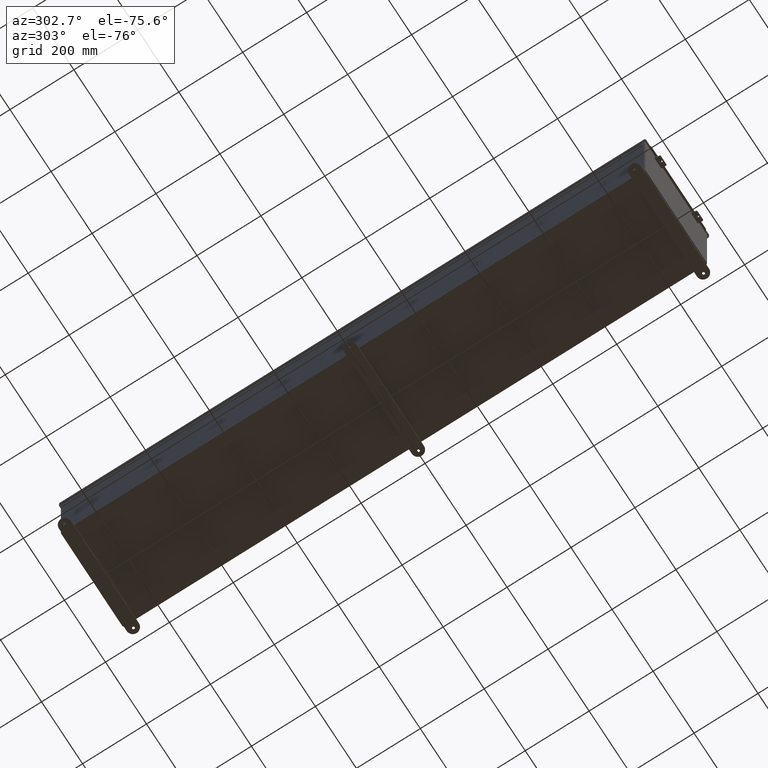
[diagram: clean part render]
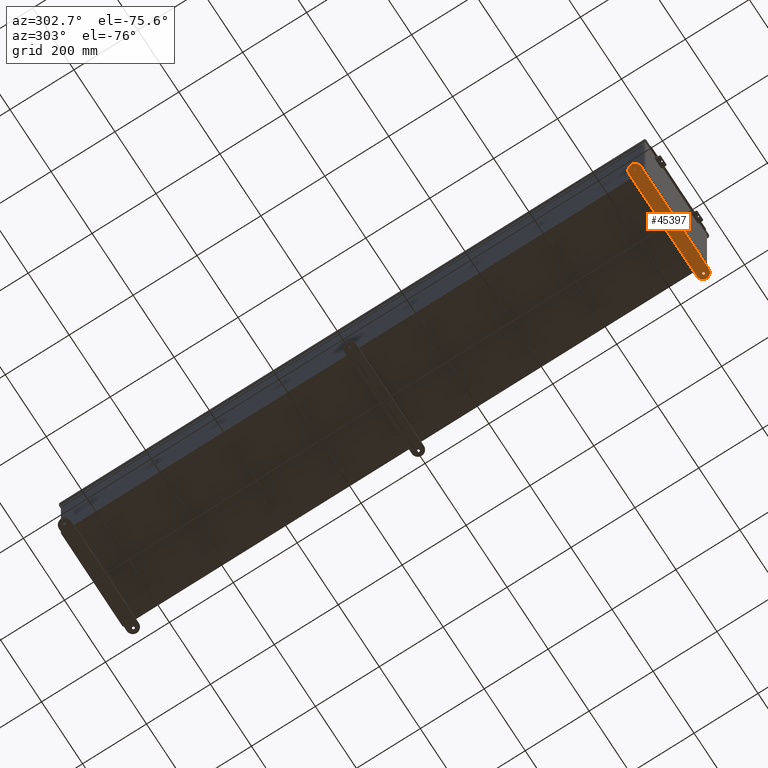
[diagram: same view with one face highlighted and labeled with its STEP entity id]
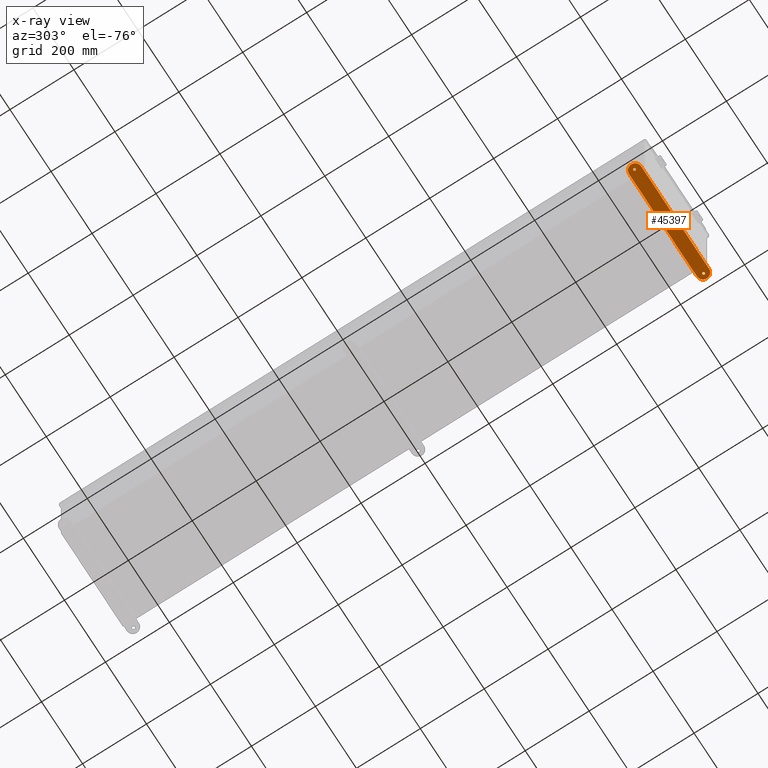
[diagram: x-ray of the same camera — body ghosted, the highlighted face saturated]
A machine part, auxiliary view. The second image highlights one B-rep face of the part: STEP entity #45397.
The next image is the same camera in x-ray: the body ghosted, the highlighted face saturated — about 0% of this face is hidden behind the body in this view.
In plain terms, the highlighted planar face has unit normal (0, 0, -1).
Its self-contained STEP definition (entity closure, byte-faithful):
#140 = CIRCLE ( 'NONE', #41964, 0.7499999999999993300 ) ;
#528 = ORIENTED_EDGE ( 'NONE', *, *, #3545, .F. ) ;
#782 = AXIS2_PLACEMENT_3D ( 'NONE', #26553, #3190, #30512 ) ;
#814 = DIRECTION ( 'NONE',  ( -0.0000000000000000000, -0.0000000000000000000, -1.000000000000000000 ) ) ;
#951 = DIRECTION ( 'NONE',  ( -1.000000000000000000, 0.0000000000000000000, 0.0000000000000000000 ) ) ;
#1377 = DIRECTION ( 'NONE',  ( 1.000000000000000000, -1.260852920152736700E-016, 0.0000000000000000000 ) ) ;
#2105 = CARTESIAN_POINT ( 'NONE',  ( 6.500000000000000000, -0.3379059350503891300, -0.1345000000000000100 ) ) ;
#2721 = CARTESIAN_POINT ( 'NONE',  ( -6.468500000000001500, 0.4120940649496083700, -0.1345000000000000100 ) ) ;
#2829 = VERTEX_POINT ( 'NONE', #2105 ) ;
#2943 = ORIENTED_EDGE ( 'NONE', *, *, #50158, .F. ) ;
#3042 = AXIS2_PLACEMENT_3D ( 'NONE', #11460, #38716, #15373 ) ;
#3190 = DIRECTION ( 'NONE',  ( 0.0000000000000000000, 0.0000000000000000000, 1.000000000000000000 ) ) ;
#3316 = EDGE_CURVE ( 'NONE', #39813, #2829, #28028, .T. ) ;
#3407 = CIRCLE ( 'NONE', #3042, 0.1564999999999992800 ) ;
#3414 = AXIS2_PLACEMENT_3D ( 'NONE', #42096, #18748, #46007 ) ;
#3417 = CARTESIAN_POINT ( 'NONE',  ( 6.500000000000000000, 0.4120940649496125900, -0.1345000000000000100 ) ) ;
#3545 = EDGE_CURVE ( 'NONE', #15914, #4592, #50649, .T. ) ;
#4592 = VERTEX_POINT ( 'NONE', #5259 ) ;
#4864 = EDGE_CURVE ( 'NONE', #11238, #16376, #50508, .T. ) ;
#4876 = EDGE_CURVE ( 'NONE', #2829, #15914, #20573, .T. ) ;
#5259 = CARTESIAN_POINT ( 'NONE',  ( 6.500000000000000000, 1.162094064949614100, -0.1345000000000000100 ) ) ;
#5823 = LINE ( 'NONE', #17955, #26558 ) ;
#7333 = DIRECTION ( 'NONE',  ( -1.000000000000000000, 0.0000000000000000000, 0.0000000000000000000 ) ) ;
#7535 = ORIENTED_EDGE ( 'NONE', *, *, #25666, .F. ) ;
#9479 = DIRECTION ( 'NONE',  ( -0.0000000000000000000, 0.0000000000000000000, -1.000000000000000000 ) ) ;
#10119 = CARTESIAN_POINT ( 'NONE',  ( 7.250000000000001800, 0.4120940649496125900, -0.1345000000000000100 ) ) ;
#11238 = VERTEX_POINT ( 'NONE', #42607 ) ;
#11460 = CARTESIAN_POINT ( 'NONE',  ( -6.625000000000000900, 0.4120940649496083700, -0.1345000000000000100 ) ) ;
#13248 = CARTESIAN_POINT ( 'NONE',  ( 6.500000000000000000, 0.4120940649496125900, -0.1345000000000000100 ) ) ;
#13529 = AXIS2_PLACEMENT_3D ( 'NONE', #24223, #814, #28134 ) ;
#13540 = CARTESIAN_POINT ( 'NONE',  ( 6.468500000000001500, 0.4120940649496083700, -0.1345000000000000100 ) ) ;
#14170 = FACE_BOUND ( 'NONE', #25424, .T. ) ;
#14269 = CARTESIAN_POINT ( 'NONE',  ( -6.500000000000000000, 0.4120940649496124300, -0.1345000000000000100 ) ) ;
#15373 = DIRECTION ( 'NONE',  ( -1.000000000000000000, 0.0000000000000000000, 0.0000000000000000000 ) ) ;
#15914 = VERTEX_POINT ( 'NONE', #10119 ) ;
#16376 = VERTEX_POINT ( 'NONE', #2721 ) ;
#16883 = EDGE_LOOP ( 'NONE', ( #30710, #20247, #17898, #2943, #528 ) ) ;
#17898 = ORIENTED_EDGE ( 'NONE', *, *, #38499, .F. ) ;
#17955 = CARTESIAN_POINT ( 'NONE',  ( -6.500000000000000000, 1.162094064949612300, -0.1345000000000000100 ) ) ;
#18224 = DIRECTION ( 'NONE',  ( 1.000000000000000000, 0.0000000000000000000, 0.0000000000000000000 ) ) ;
#18748 = DIRECTION ( 'NONE',  ( 0.0000000000000000000, 0.0000000000000000000, 1.000000000000000000 ) ) ;
#19620 = CIRCLE ( 'NONE', #13529, 0.1564999999999992800 ) ;
#20247 = ORIENTED_EDGE ( 'NONE', *, *, #3316, .F. ) ;
#20573 = CIRCLE ( 'NONE', #782, 0.7500000000000015500 ) ;
#22031 = AXIS2_PLACEMENT_3D ( 'NONE', #13248, #9479, #36776 ) ;
#24223 = CARTESIAN_POINT ( 'NONE',  ( 6.625000000000000900, 0.4120940649496083700, -0.1345000000000000100 ) ) ;
#24350 = DIRECTION ( 'NONE',  ( -0.0000000000000000000, -0.0000000000000000000, -1.000000000000000000 ) ) ;
#24492 = ORIENTED_EDGE ( 'NONE', *, *, #45306, .F. ) ;
#25424 = EDGE_LOOP ( 'NONE', ( #24492, #7535 ) ) ;
#25666 = EDGE_CURVE ( 'NONE', #38979, #37265, #19620, .T. ) ;
#26553 = CARTESIAN_POINT ( 'NONE',  ( 6.500000000000000000, 0.4120940649496125900, -0.1345000000000000100 ) ) ;
#26558 = VECTOR ( 'NONE', #45227, 39.37007874015748100 ) ;
#26807 = VECTOR ( 'NONE', #1377, 39.37007874015748100 ) ;
#27378 = ORIENTED_EDGE ( 'NONE', *, *, #4864, .T. ) ;
#28028 = LINE ( 'NONE', #44196, #26807 ) ;
#28134 = DIRECTION ( 'NONE',  ( -1.000000000000000000, 0.0000000000000000000, 0.0000000000000000000 ) ) ;
#28738 = EDGE_CURVE ( 'NONE', #16376, #11238, #3407, .T. ) ;
#30512 = DIRECTION ( 'NONE',  ( -1.000000000000000000, 0.0000000000000000000, 0.0000000000000000000 ) ) ;
#30677 = CIRCLE ( 'NONE', #46538, 0.1564999999999992800 ) ;
#30710 = ORIENTED_EDGE ( 'NONE', *, *, #4876, .F. ) ;
#30739 = DIRECTION ( 'NONE',  ( 0.0000000000000000000, 0.0000000000000000000, 1.000000000000000000 ) ) ;
#32004 = CARTESIAN_POINT ( 'NONE',  ( 6.781499999999999400, 0.4120940649496083700, -0.1345000000000000100 ) ) ;
#32119 = AXIS2_PLACEMENT_3D ( 'NONE', #3417, #30739, #7333 ) ;
#32868 = PLANE ( 'NONE',  #22031 ) ;
#33249 = VERTEX_POINT ( 'NONE', #48773 ) ;
#33705 = FACE_OUTER_BOUND ( 'NONE', #16883, .T. ) ;
#33791 = EDGE_LOOP ( 'NONE', ( #45501, #27378 ) ) ;
#36136 = FACE_BOUND ( 'NONE', #33791, .T. ) ;
#36776 = DIRECTION ( 'NONE',  ( -1.000000000000000000, 0.0000000000000000000, 0.0000000000000000000 ) ) ;
#37265 = VERTEX_POINT ( 'NONE', #32004 ) ;
#38499 = EDGE_CURVE ( 'NONE', #33249, #39813, #140, .T. ) ;
#38716 = DIRECTION ( 'NONE',  ( 0.0000000000000000000, 0.0000000000000000000, 1.000000000000000000 ) ) ;
#38979 = VERTEX_POINT ( 'NONE', #13540 ) ;
#39813 = VERTEX_POINT ( 'NONE', #49843 ) ;
#41568 = DIRECTION ( 'NONE',  ( 0.0000000000000000000, 0.0000000000000000000, 1.000000000000000000 ) ) ;
#41964 = AXIS2_PLACEMENT_3D ( 'NONE', #14269, #41568, #18224 ) ;
#42096 = CARTESIAN_POINT ( 'NONE',  ( -6.625000000000000900, 0.4120940649496083700, -0.1345000000000000100 ) ) ;
#42607 = CARTESIAN_POINT ( 'NONE',  ( -6.781499999999999400, 0.4120940649496083700, -0.1345000000000000100 ) ) ;
#44196 = CARTESIAN_POINT ( 'NONE',  ( -6.500000000000000000, -0.3379059350503874600, -0.1345000000000000100 ) ) ;
#45227 = DIRECTION ( 'NONE',  ( -1.000000000000000000, -1.260852920152736700E-016, -0.0000000000000000000 ) ) ;
#45306 = EDGE_CURVE ( 'NONE', #37265, #38979, #30677, .T. ) ;
#45397 = ADVANCED_FACE ( 'NONE', ( #33705, #36136, #14170 ), #32868, .T. ) ;
#45501 = ORIENTED_EDGE ( 'NONE', *, *, #28738, .T. ) ;
#46007 = DIRECTION ( 'NONE',  ( -1.000000000000000000, 0.0000000000000000000, 0.0000000000000000000 ) ) ;
#46538 = AXIS2_PLACEMENT_3D ( 'NONE', #47724, #24350, #951 ) ;
#47724 = CARTESIAN_POINT ( 'NONE',  ( 6.625000000000000900, 0.4120940649496083700, -0.1345000000000000100 ) ) ;
#48773 = CARTESIAN_POINT ( 'NONE',  ( -6.500000000000000000, 1.162094064949612300, -0.1345000000000000100 ) ) ;
#49843 = CARTESIAN_POINT ( 'NONE',  ( -6.500000000000000000, -0.3379059350503874600, -0.1345000000000000100 ) ) ;
#50158 = EDGE_CURVE ( 'NONE', #4592, #33249, #5823, .T. ) ;
#50508 = CIRCLE ( 'NONE', #3414, 0.1564999999999992800 ) ;
#50649 = CIRCLE ( 'NONE', #32119, 0.7500000000000015500 ) ;